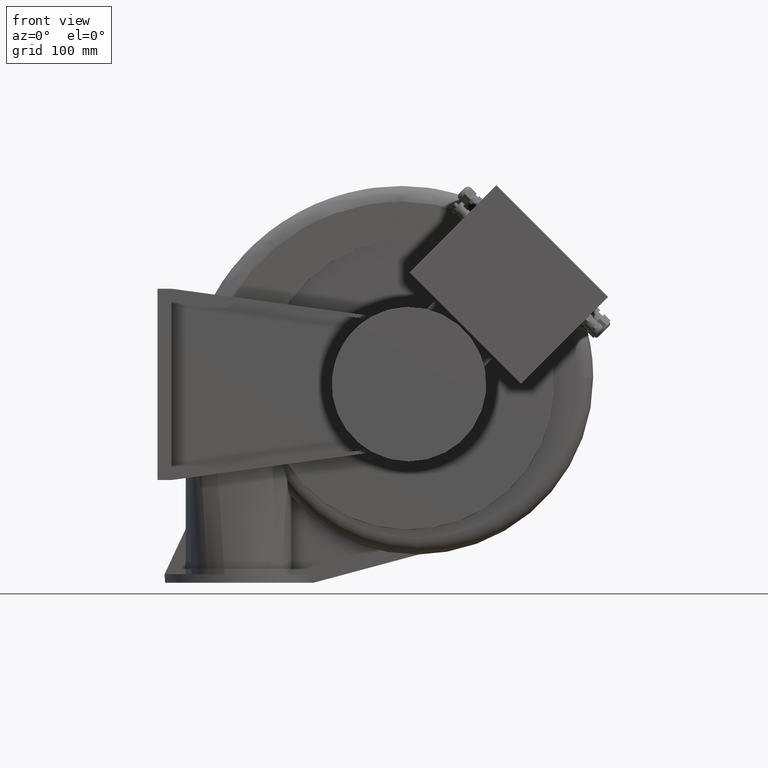
[diagram: clean part render]
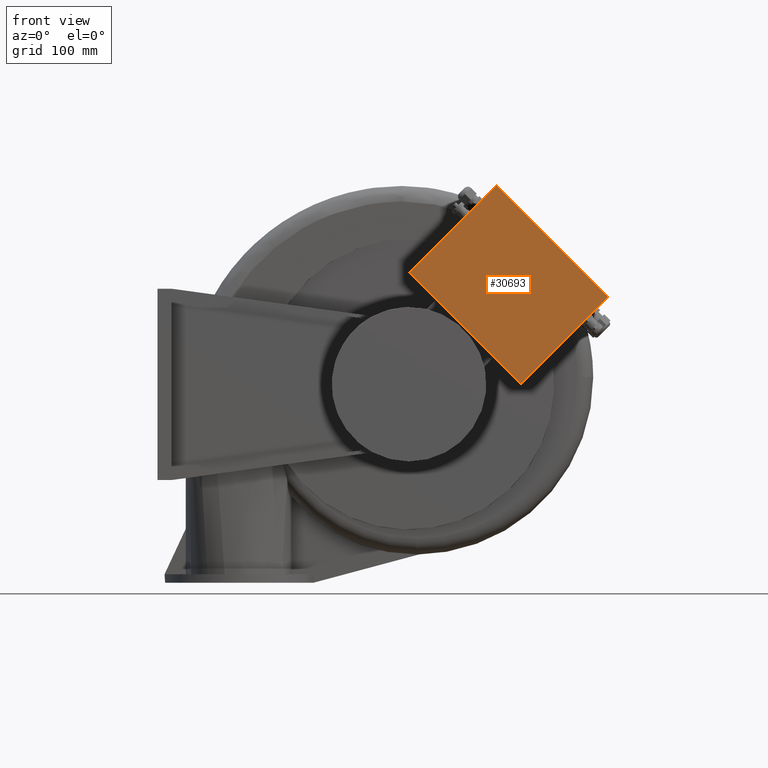
[diagram: same view with one face highlighted and labeled with its STEP entity id]
A machine part, front view. The second image highlights one B-rep face of the part: STEP entity #30693.
In plain terms, the highlighted planar face has unit normal (0, -1, 0).
Its self-contained STEP definition (entity closure, byte-faithful):
#21752=CARTESIAN_POINT('',(513.03836559520039,-314.69999999999987,-134.64644660940172));
#21753=VERTEX_POINT('',#21752);
#21760=CARTESIAN_POINT('',(355.35355339060112,-314.69999999999993,23.038365595199146));
#21761=VERTEX_POINT('',#21760);
#21762=CARTESIAN_POINT('',(355.35355339060112,-314.69999999999993,23.038365595199146));
#21763=DIRECTION('',(0.707106781186544,2.549032E-016,-0.707106781186551));
#21764=VECTOR('',#21763,222.99999999999994);
#21765=LINE('',#21762,#21764);
#21766=EDGE_CURVE('',#21761,#21753,#21765,.T.);
#27625=CARTESIAN_POINT('',(478.3901333170611,-314.69999999999959,146.07494552165781));
#27626=VERTEX_POINT('',#27625);
#27633=CARTESIAN_POINT('',(636.07494552166031,-314.69999999999948,-11.60986668294302));
#27634=VERTEX_POINT('',#27633);
#27635=CARTESIAN_POINT('',(478.3901333170611,-314.69999999999959,146.07494552165781));
#27636=DIRECTION('',(0.707106781186544,2.549032E-016,-0.707106781186551));
#27637=VECTOR('',#27636,222.99999999999991);
#27638=LINE('',#27635,#27637);
#27639=EDGE_CURVE('',#27626,#27634,#27638,.T.);
#30635=CARTESIAN_POINT('',(478.3901333170611,-314.69999999999959,146.07494552165781));
#30636=DIRECTION('',(-0.707106781186551,-1.960118E-015,-0.707106781186544));
#30637=VECTOR('',#30636,174.00000000000003);
#30638=LINE('',#30635,#30637);
#30639=EDGE_CURVE('',#27626,#21761,#30638,.T.);
#30677=CARTESIAN_POINT('',(478.3901333170611,-314.69999999999959,146.07494552165781));
#30678=DIRECTION('',(0.0,-1.0,0.0));
#30679=DIRECTION('',(0.707106781186551,0.0,0.707106781186544));
#30680=AXIS2_PLACEMENT_3D('',#30677,#30678,#30679);
#30681=PLANE('',#30680);
#30682=ORIENTED_EDGE('',*,*,#21766,.T.);
#30683=CARTESIAN_POINT('',(636.07494552166031,-314.69999999999948,-11.60986668294302));
#30684=DIRECTION('',(-0.707106781186551,-1.960118E-015,-0.707106781186544));
#30685=VECTOR('',#30684,174.00000000000003);
#30686=LINE('',#30683,#30685);
#30687=EDGE_CURVE('',#27634,#21753,#30686,.T.);
#30688=ORIENTED_EDGE('',*,*,#30687,.F.);
#30689=ORIENTED_EDGE('',*,*,#27639,.F.);
#30690=ORIENTED_EDGE('',*,*,#30639,.T.);
#30691=EDGE_LOOP('',(#30682,#30688,#30689,#30690));
#30692=FACE_OUTER_BOUND('',#30691,.T.);
#30693=ADVANCED_FACE('',(#30692),#30681,.T.);